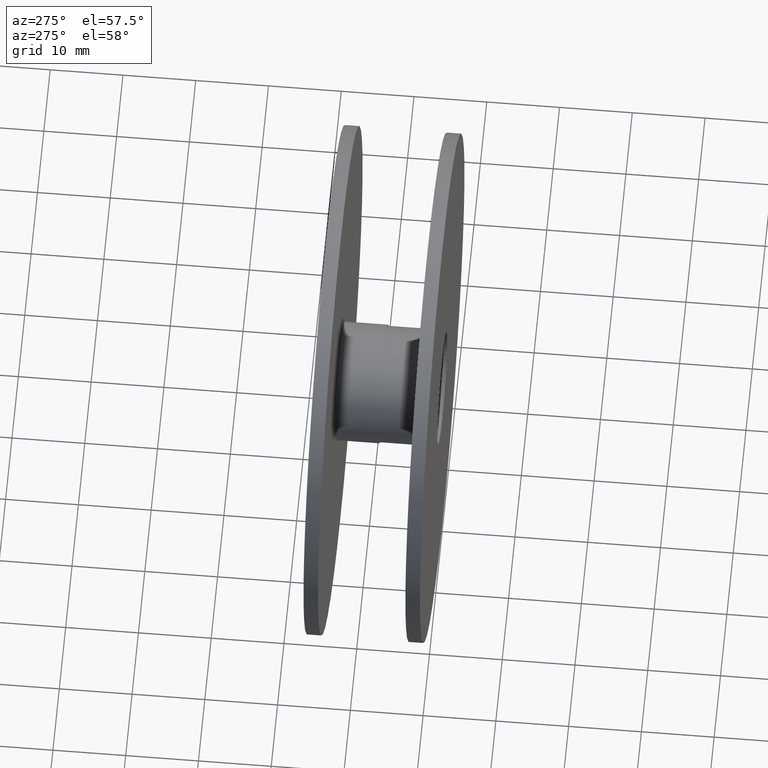
[diagram: clean part render]
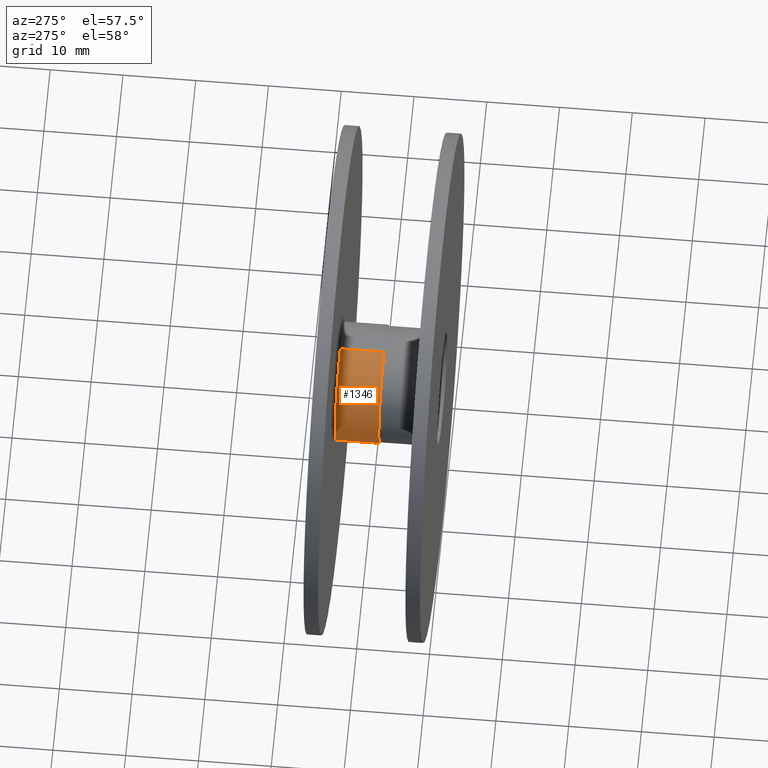
[diagram: same view with one face highlighted and labeled with its STEP entity id]
A machine part, auxiliary view. The second image highlights one B-rep face of the part: STEP entity #1346.
In plain terms, the highlighted cylindrical surface (partial cylindrical patch) has radius 8.15 mm, axis along (-0, -1, -0).
Its self-contained STEP definition (entity closure, byte-faithful):
#869 = CYLINDRICAL_SURFACE ( 'NONE', #2574, 8.150000000000000355 ) ;
#1346 = ADVANCED_FACE ( 'NONE', ( #10889 ), #869, .T. ) ;
#1440 = DIRECTION ( 'NONE',  ( 0.000000000000000000, 0.000000000000000000, 1.000000000000000000 ) ) ;
#1623 = EDGE_CURVE ( 'NONE', #6131, #5257, #8796, .T. ) ;
#1693 = EDGE_LOOP ( 'NONE', ( #10655, #11378, #6102, #10020 ) ) ;
#2281 = EDGE_CURVE ( 'NONE', #5257, #7304, #10120, .T. ) ;
#2574 = AXIS2_PLACEMENT_3D ( 'NONE', #10791, #5768, #6875 ) ;
#2968 = AXIS2_PLACEMENT_3D ( 'NONE', #6210, #6173, #1440 ) ;
#3410 = CARTESIAN_POINT ( 'NONE',  ( 9.980871413050929957E-16, 6.000000000000000000, 8.150000000000000355 ) ) ;
#4591 = CIRCLE ( 'NONE', #9496, 8.150000000000000355 ) ;
#4606 = EDGE_CURVE ( 'NONE', #5205, #7304, #4591, .T. ) ;
#4714 = CARTESIAN_POINT ( 'NONE',  ( 9.980871413050929957E-16, 0.000000000000000000, 8.150000000000000355 ) ) ;
#4735 = DIRECTION ( 'NONE',  ( 0.000000000000000000, 0.000000000000000000, 1.000000000000000000 ) ) ;
#4771 = DIRECTION ( 'NONE',  ( 0.000000000000000000, 1.000000000000000000, 0.000000000000000000 ) ) ;
#4865 = VECTOR ( 'NONE', #11798, 1000.000000000000000 ) ;
#5048 = CARTESIAN_POINT ( 'NONE',  ( 9.980871413050929957E-16, 6.000000000000000000, 8.150000000000000355 ) ) ;
#5205 = VERTEX_POINT ( 'NONE', #10925 ) ;
#5257 = VERTEX_POINT ( 'NONE', #3410 ) ;
#5768 = DIRECTION ( 'NONE',  ( -0.000000000000000000, -1.000000000000000000, -0.000000000000000000 ) ) ;
#6005 = DIRECTION ( 'NONE',  ( -0.000000000000000000, -1.000000000000000000, -0.000000000000000000 ) ) ;
#6102 = ORIENTED_EDGE ( 'NONE', *, *, #6553, .T. ) ;
#6131 = VERTEX_POINT ( 'NONE', #9218 ) ;
#6173 = DIRECTION ( 'NONE',  ( 0.000000000000000000, 1.000000000000000000, 0.000000000000000000 ) ) ;
#6210 = CARTESIAN_POINT ( 'NONE',  ( 0.000000000000000000, 6.000000000000000000, 0.000000000000000000 ) ) ;
#6553 = EDGE_CURVE ( 'NONE', #6131, #5205, #6748, .T. ) ;
#6643 = CARTESIAN_POINT ( 'NONE',  ( 0.000000000000000000, 0.000000000000000000, 0.000000000000000000 ) ) ;
#6748 = LINE ( 'NONE', #11658, #8718 ) ;
#6875 = DIRECTION ( 'NONE',  ( 0.000000000000000000, 0.000000000000000000, -1.000000000000000000 ) ) ;
#7304 = VERTEX_POINT ( 'NONE', #4714 ) ;
#8718 = VECTOR ( 'NONE', #6005, 1000.000000000000000 ) ;
#8796 = CIRCLE ( 'NONE', #2968, 8.150000000000000355 ) ;
#9218 = CARTESIAN_POINT ( 'NONE',  ( 0.000000000000000000, 6.000000000000000000, -8.150000000000000355 ) ) ;
#9496 = AXIS2_PLACEMENT_3D ( 'NONE', #6643, #4771, #4735 ) ;
#10020 = ORIENTED_EDGE ( 'NONE', *, *, #4606, .T. ) ;
#10120 = LINE ( 'NONE', #5048, #4865 ) ;
#10655 = ORIENTED_EDGE ( 'NONE', *, *, #2281, .F. ) ;
#10791 = CARTESIAN_POINT ( 'NONE',  ( 0.000000000000000000, 6.000000000000000000, 0.000000000000000000 ) ) ;
#10889 = FACE_OUTER_BOUND ( 'NONE', #1693, .T. ) ;
#10925 = CARTESIAN_POINT ( 'NONE',  ( 0.000000000000000000, 0.000000000000000000, -8.150000000000000355 ) ) ;
#11378 = ORIENTED_EDGE ( 'NONE', *, *, #1623, .F. ) ;
#11658 = CARTESIAN_POINT ( 'NONE',  ( 0.000000000000000000, 6.000000000000000000, -8.150000000000000355 ) ) ;
#11798 = DIRECTION ( 'NONE',  ( -0.000000000000000000, -1.000000000000000000, -0.000000000000000000 ) ) ;